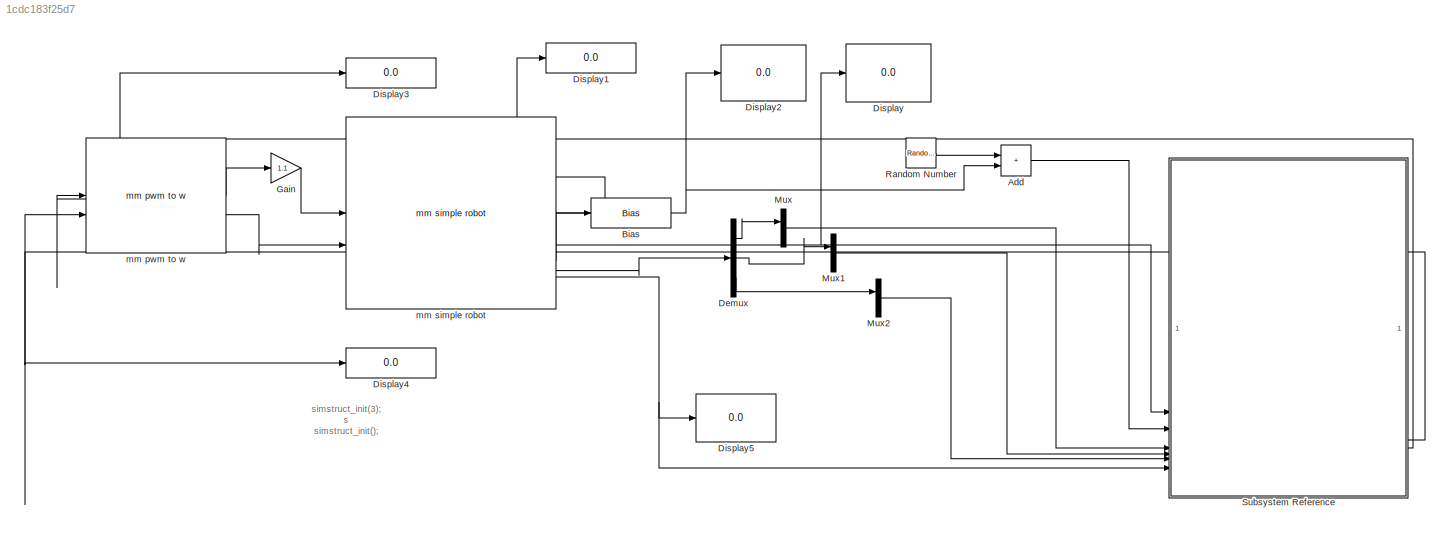
MODEL slx_1cdc183f25d7
KIND model
CONFIG AbsTol = auto
CONFIG EnableMultiTasking = off
CONFIG FixedStep = 0.005
CONFIG MaxStep = auto
CONFIG MinStep = auto
CONFIG RelTol = 1e-3
CONFIG SampleTimeConstraint = Unconstrained
CONFIG SolverName = FixedStepAuto
CONFIG StartTime = 0.0
CONFIG StopTime = 30
BLOCK [Sum] Add
  IconShape = rectangular
BLOCK [Bias] Bias
  Bias = [0.1 0.1 0.1]
  SaturateOnIntegerOverflow = off
BLOCK [Demux] Demux
  Outputs = 3
BLOCK [Display] Display
  Decimation = 1
BLOCK [Display] Display1
  Decimation = 1
BLOCK [Display] Display2
  Decimation = 1
BLOCK [Display] Display3
  Decimation = 1
BLOCK [Display] Display4
  Decimation = 1
BLOCK [Display] Display5
  Decimation = 1
BLOCK [Gain] Gain
  Gain = 1.1
BLOCK [Mux] Mux
  DisplayOption = bar
BLOCK [Mux] Mux1
  DisplayOption = bar
BLOCK [Mux] Mux2
  DisplayOption = bar
BLOCK [RandomNumber] Random Number
  SampleTime = 0.1
  Variance = 0.05
BLOCK [SubSystem] Subsystem Reference
  ReferencedSubsystem = MDLAYA022
BLOCK [Reference] mm pwm to w  REF=mmuct_lib/mm pwm to w  (lib defined in slx_2620ace7ce61, slx_448e9b5fb939)
  SourceBlock = mmuct_lib/mm pwm to w
BLOCK [Reference] mm simple robot  REF=mmuct_lib/mm simple robot  (lib defined in slx_2620ace7ce61, slx_448e9b5fb939)
  SourceBlock = mmuct_lib/mm simple robot
  SourceProductName = UCT EEE Micromouse
ANNOTATION (root): simstruct_init(3); s simstruct_init();
LINE Add:1 -> Subsystem Reference:4
NET Bias:1 -> Add:2, Display2:1
LINE Demux:1 -> Mux:1
LINE Demux:2 -> Mux1:1
LINE Demux:3 -> Mux2:1
LINE Gain:1 -> mm simple robot:1
LINE Mux1:1 -> Subsystem Reference:7
LINE Mux2:1 -> Subsystem Reference:8
LINE Mux:1 -> Subsystem Reference:6
LINE Random Number:1 -> Add:1
NET Subsystem Reference:5 -> Display4:1, mm pwm to w:2
NET Subsystem Reference:6 -> Display3:1, mm pwm to w:1
LINE mm pwm to w:1 -> Gain:1
LINE mm pwm to w:2 -> mm simple robot:2
LINE mm simple robot:1 -> Display1:1
NET mm simple robot:2 -> Display:1, Subsystem Reference:3
LINE mm simple robot:3 -> Bias:1
LINE mm simple robot:4 -> Demux:1
NET mm simple robot:5 -> Display5:1, Subsystem Reference:11
note: NET lines group one-source signal fan-out (src -> all destinations, sorted); 1:1 wires keep LINE
